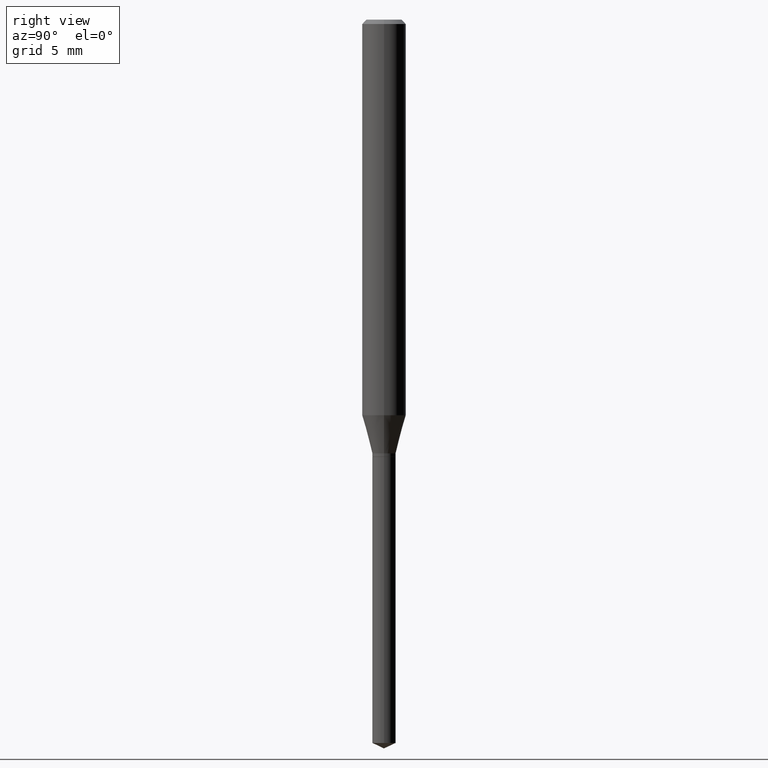
[diagram: clean part render]
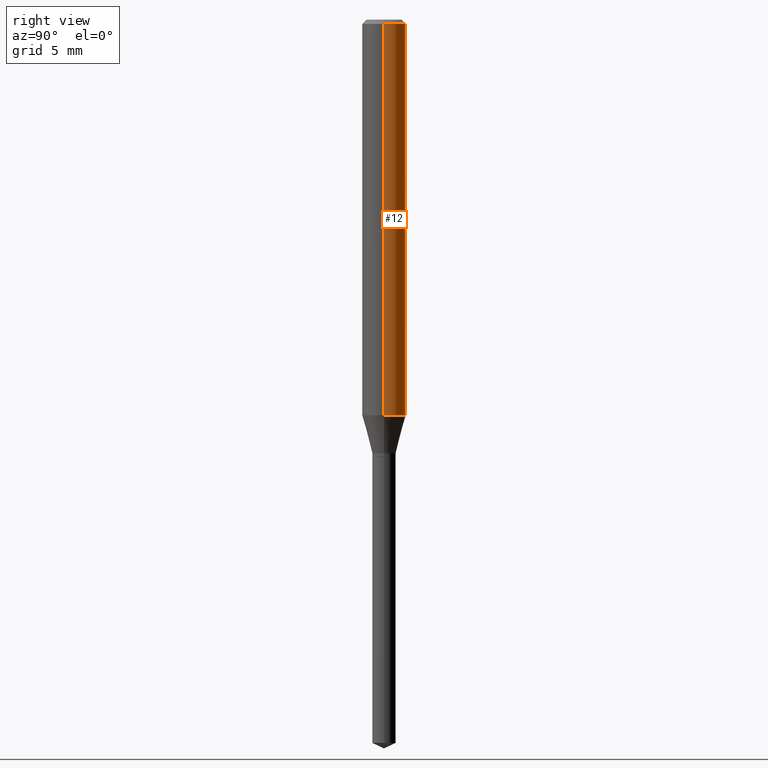
[diagram: same view with one face highlighted and labeled with its STEP entity id]
A machine part, right view. The second image highlights one B-rep face of the part: STEP entity #12.
In plain terms, the highlighted cylindrical surface (edge-blend (fillet) strip) has radius 1.4999 mm, axis along (-0, 0, 1).
Its self-contained STEP definition (entity closure, byte-faithful):
#2 = CARTESIAN_POINT ( 'NONE',  ( 0.05905000000000011628, -4.143976355286858032E-15, -1.068782000251477182 ) ) ;
#12 = ADVANCED_FACE ( 'NONE', ( #293 ), #52, .T. ) ;
#16 = DIRECTION ( 'NONE',  ( 1.000000000000000000, -6.982962677686266711E-15, 0.000000000000000000 ) ) ;
#26 = CARTESIAN_POINT ( 'NONE',  ( -0.05904999999999999832, -1.466857916424269744E-15, -0.01181000000000007044 ) ) ;
#37 = ORIENTED_EDGE ( 'NONE', *, *, #448, .F. ) ;
#52 = CYLINDRICAL_SURFACE ( 'NONE', #131, 0.05905000000000006771 ) ;
#66 = EDGE_CURVE ( 'NONE', #400, #483, #130, .T. ) ;
#130 = LINE ( 'NONE', #137, #294 ) ;
#131 = AXIS2_PLACEMENT_3D ( 'NONE', #209, #372, #366 ) ;
#135 = DIRECTION ( 'NONE',  ( -2.445468806185136877E-29, 3.491481338843145188E-15, 1.000000000000000000 ) ) ;
#137 = CARTESIAN_POINT ( 'NONE',  ( -0.05905000000000006771, 4.195754854663396409E-16, -2.904631170795525045E-30 ) ) ;
#147 = EDGE_CURVE ( 'NONE', #153, #400, #398, .T. ) ;
#149 = ORIENTED_EDGE ( 'NONE', *, *, #279, .F. ) ;
#150 = CARTESIAN_POINT ( 'NONE',  ( 0.05904999999999999832, -4.535783407291118600E-16, -0.01181000000000007044 ) ) ;
#153 = VERTEX_POINT ( 'NONE', #2 ) ;
#174 = LINE ( 'NONE', #474, #262 ) ;
#180 = CIRCLE ( 'NONE', #363, 0.05904999999999999832 ) ;
#187 = DIRECTION ( 'NONE',  ( -2.445468806185136597E-29, 3.491481338843145583E-15, 1.000000000000000000 ) ) ;
#194 = ORIENTED_EDGE ( 'NONE', *, *, #147, .T. ) ;
#209 = CARTESIAN_POINT ( 'NONE',  ( 0.000000000000000000, 0.000000000000000000, 0.000000000000000000 ) ) ;
#218 = DIRECTION ( 'NONE',  ( -2.445468806185136877E-29, 3.491481338843145188E-15, 1.000000000000000000 ) ) ;
#240 = VERTEX_POINT ( 'NONE', #150 ) ;
#248 = DIRECTION ( 'NONE',  ( -2.445468806185136597E-29, 3.491481338843145583E-15, 1.000000000000000000 ) ) ;
#262 = VECTOR ( 'NONE', #135, 39.37007874015748143 ) ;
#268 = EDGE_LOOP ( 'NONE', ( #194, #310, #149, #37 ) ) ;
#279 = EDGE_CURVE ( 'NONE', #240, #483, #180, .T. ) ;
#293 = FACE_OUTER_BOUND ( 'NONE', #268, .T. ) ;
#294 = VECTOR ( 'NONE', #218, 39.37007874015748143 ) ;
#310 = ORIENTED_EDGE ( 'NONE', *, *, #66, .T. ) ;
#335 = CARTESIAN_POINT ( 'NONE',  ( -0.05905000000000011628, -3.312056923703143225E-15, -1.068782000251477182 ) ) ;
#345 = CARTESIAN_POINT ( 'NONE',  ( 2.613673042227141951E-29, -3.731632409169482323E-15, -1.068782000251477182 ) ) ;
#348 = DIRECTION ( 'NONE',  ( 1.000000000000000000, -6.982962677686265133E-15, 0.000000000000000000 ) ) ;
#363 = AXIS2_PLACEMENT_3D ( 'NONE', #391, #248, #16 ) ;
#366 = DIRECTION ( 'NONE',  ( 1.000000000000000000, -6.982962677686266711E-15, 4.876176775795936353E-29 ) ) ;
#372 = DIRECTION ( 'NONE',  ( -2.445468806185136597E-29, 3.491481338843145583E-15, 1.000000000000000000 ) ) ;
#379 = AXIS2_PLACEMENT_3D ( 'NONE', #345, #187, #348 ) ;
#391 = CARTESIAN_POINT ( 'NONE',  ( 2.888098660104663766E-31, -4.123439461173779647E-17, -0.01181000000000007044 ) ) ;
#398 = CIRCLE ( 'NONE', #379, 0.05905000000000013016 ) ;
#400 = VERTEX_POINT ( 'NONE', #335 ) ;
#448 = EDGE_CURVE ( 'NONE', #153, #240, #174, .T. ) ;
#474 = CARTESIAN_POINT ( 'NONE',  ( 0.05905000000000006771, -4.123439461173745257E-16, 2.879382386107503723E-30 ) ) ;
#483 = VERTEX_POINT ( 'NONE', #26 ) ;